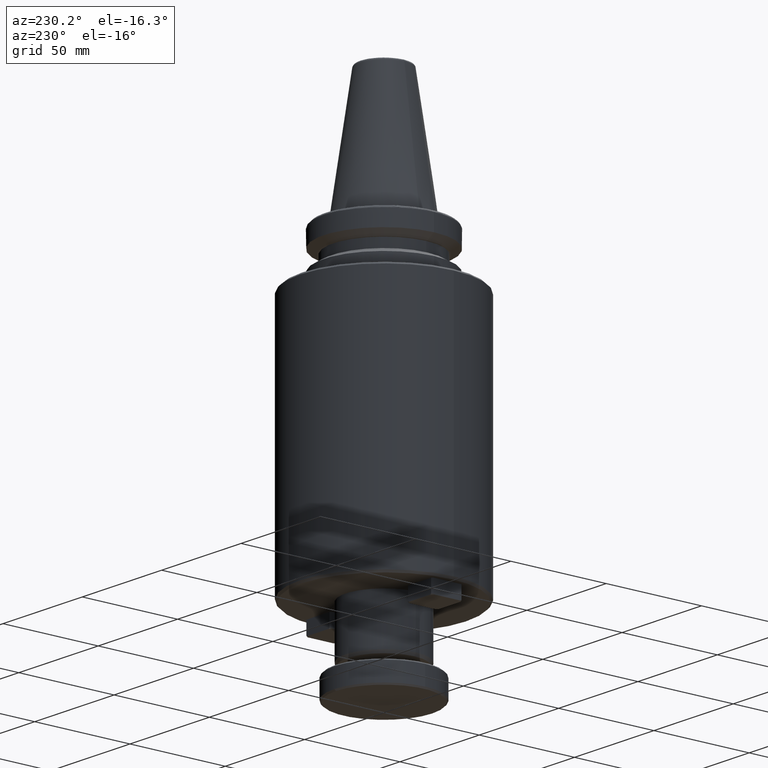
[diagram: clean part render]
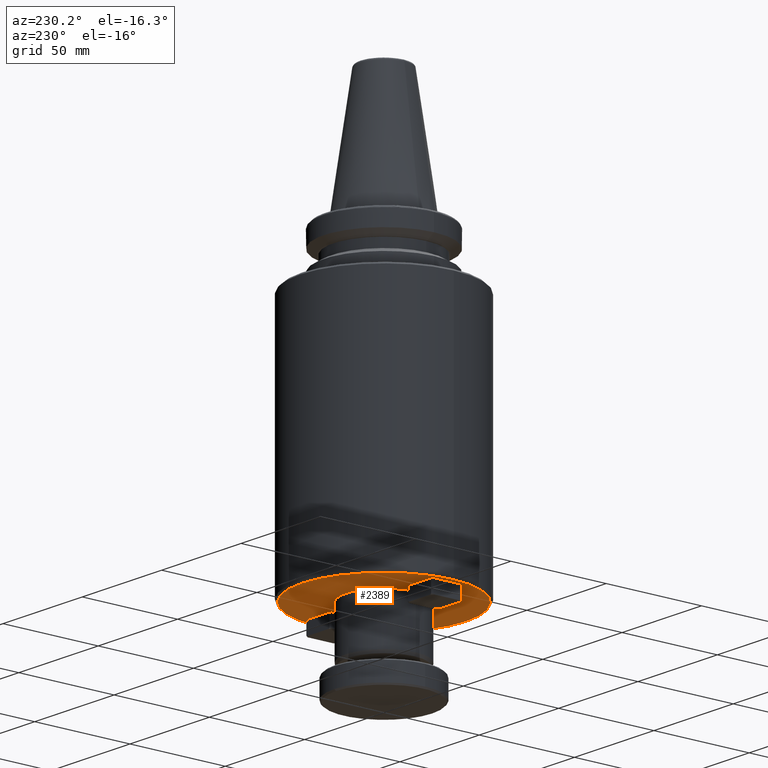
[diagram: same view with one face highlighted and labeled with its STEP entity id]
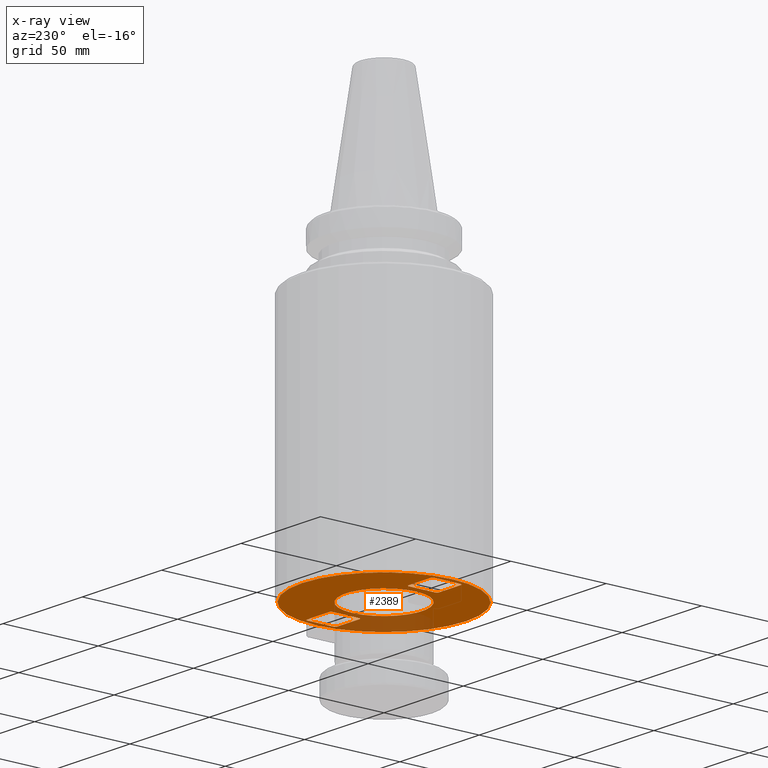
[diagram: x-ray of the same camera — body ghosted, the highlighted face saturated]
A machine part, auxiliary view. The second image highlights one B-rep face of the part: STEP entity #2389.
The next image is the same camera in x-ray: the body ghosted, the highlighted face saturated — about 20% of this face is hidden behind the body in this view.
In plain terms, the highlighted planar face has unit normal (0, 0, 1).
Its self-contained STEP definition (entity closure, byte-faithful):
#19 = ORIENTED_EDGE ( 'NONE', *, *, #287, .F. ) ;
#20 = CARTESIAN_POINT ( 'NONE',  ( 0.0000000000000000000, 8.000000000000000000, -160.0000000000000000 ) ) ;
#23 = VECTOR ( 'NONE', #3298, 1000.000000000000100 ) ;
#26 = CARTESIAN_POINT ( 'NONE',  ( 43.00000000000000000, 0.0000000000000000000, -160.0000000000000300 ) ) ;
#27 = EDGE_CURVE ( 'NONE', #2241, #600, #1875, .T. ) ;
#30 = ORIENTED_EDGE ( 'NONE', *, *, #1890, .F. ) ;
#99 = CIRCLE ( 'NONE', #1978, 20.00000000000000000 ) ;
#159 = ORIENTED_EDGE ( 'NONE', *, *, #2882, .T. ) ;
#190 = EDGE_LOOP ( 'NONE', ( #522, #1231 ) ) ;
#196 = CARTESIAN_POINT ( 'NONE',  ( 39.30000000000003300, -7.999999999999996400, -160.0000000000000000 ) ) ;
#218 = VECTOR ( 'NONE', #2558, 1000.000000000000100 ) ;
#222 = CIRCLE ( 'NONE', #3471, 43.00000000000000000 ) ;
#283 = ORIENTED_EDGE ( 'NONE', *, *, #27, .F. ) ;
#287 = EDGE_CURVE ( 'NONE', #485, #3392, #2896, .T. ) ;
#290 = VERTEX_POINT ( 'NONE', #1956 ) ;
#310 = CARTESIAN_POINT ( 'NONE',  ( 40.00000000000000000, 7.299999999999970500, -160.0000000000000000 ) ) ;
#319 = VERTEX_POINT ( 'NONE', #649 ) ;
#333 = LINE ( 'NONE', #1931, #23 ) ;
#374 = CARTESIAN_POINT ( 'NONE',  ( 24.00000000000000000, -7.299999999999959000, -160.0000000000000000 ) ) ;
#432 = EDGE_LOOP ( 'NONE', ( #3026, #19 ) ) ;
#458 = EDGE_CURVE ( 'NONE', #2241, #2433, #3578, .T. ) ;
#476 = VERTEX_POINT ( 'NONE', #771 ) ;
#480 = LINE ( 'NONE', #3234, #1022 ) ;
#485 = VERTEX_POINT ( 'NONE', #1391 ) ;
#486 = DIRECTION ( 'NONE',  ( 0.0000000000000000000, -1.000000000000000000, -0.0000000000000000000 ) ) ;
#491 = CARTESIAN_POINT ( 'NONE',  ( -24.00000000000000000, 7.299999999999966100, -160.0000000000000000 ) ) ;
#493 = DIRECTION ( 'NONE',  ( -0.7071067811865474600, 0.7071067811865474600, -0.0000000000000000000 ) ) ;
#500 = LINE ( 'NONE', #20, #849 ) ;
#505 = CARTESIAN_POINT ( 'NONE',  ( 24.70000000000006700, 7.999999999999986700, -160.0000000000000000 ) ) ;
#511 = CARTESIAN_POINT ( 'NONE',  ( -40.00000000000000000, -7.299999999999966100, -160.0000000000000000 ) ) ;
#520 = CARTESIAN_POINT ( 'NONE',  ( -24.70000000000003500, -8.000000000000000000, -160.0000000000000000 ) ) ;
#522 = ORIENTED_EDGE ( 'NONE', *, *, #2618, .F. ) ;
#523 = DIRECTION ( 'NONE',  ( -0.7071067811865340300, -0.7071067811865611200, -0.0000000000000000000 ) ) ;
#542 = EDGE_CURVE ( 'NONE', #3228, #2627, #2444, .T. ) ;
#578 = ORIENTED_EDGE ( 'NONE', *, *, #3024, .T. ) ;
#582 = CARTESIAN_POINT ( 'NONE',  ( 20.00000000000000000, 0.0000000000000000000, -160.0000000000000300 ) ) ;
#600 = VERTEX_POINT ( 'NONE', #3256 ) ;
#638 = VERTEX_POINT ( 'NONE', #1699 ) ;
#649 = CARTESIAN_POINT ( 'NONE',  ( -24.00000000000000000, -7.299999999999966100, -160.0000000000000000 ) ) ;
#699 = DIRECTION ( 'NONE',  ( -0.0000000000000000000, -0.0000000000000000000, -1.000000000000000000 ) ) ;
#703 = DIRECTION ( 'NONE',  ( 0.0000000000000000000, -0.0000000000000000000, 1.000000000000000000 ) ) ;
#732 = VERTEX_POINT ( 'NONE', #2049 ) ;
#771 = CARTESIAN_POINT ( 'NONE',  ( -39.29999999999996900, -8.000000000000000000, -160.0000000000000000 ) ) ;
#835 = VECTOR ( 'NONE', #3462, 1000.000000000000000 ) ;
#849 = VECTOR ( 'NONE', #3168, 1000.000000000000000 ) ;
#855 = LINE ( 'NONE', #2087, #1462 ) ;
#876 = ORIENTED_EDGE ( 'NONE', *, *, #995, .T. ) ;
#918 = VECTOR ( 'NONE', #1134, 1000.000000000000100 ) ;
#926 = EDGE_LOOP ( 'NONE', ( #1321, #2692, #1098, #2424, #1641, #1478, #876, #283 ) ) ;
#933 = VERTEX_POINT ( 'NONE', #1388 ) ;
#995 = EDGE_CURVE ( 'NONE', #3228, #600, #333, .T. ) ;
#1022 = VECTOR ( 'NONE', #3001, 1000.000000000000000 ) ;
#1025 = VERTEX_POINT ( 'NONE', #2499 ) ;
#1044 = EDGE_CURVE ( 'NONE', #638, #319, #1450, .T. ) ;
#1045 = DIRECTION ( 'NONE',  ( -0.7071067811865474600, -0.7071067811865474600, -0.0000000000000000000 ) ) ;
#1047 = VECTOR ( 'NONE', #1045, 1000.000000000000100 ) ;
#1079 = CARTESIAN_POINT ( 'NONE',  ( 0.0000000000000000000, -7.999999999999996400, -160.0000000000000000 ) ) ;
#1084 = CARTESIAN_POINT ( 'NONE',  ( -39.29999999999996900, 8.000000000000000000, -160.0000000000000000 ) ) ;
#1094 = CARTESIAN_POINT ( 'NONE',  ( 24.00000000000000000, -7.299999999999959000, -160.0000000000000000 ) ) ;
#1098 = ORIENTED_EDGE ( 'NONE', *, *, #3002, .T. ) ;
#1105 = LINE ( 'NONE', #1863, #1237 ) ;
#1134 = DIRECTION ( 'NONE',  ( 0.7071067811865474600, -0.7071067811865474600, -0.0000000000000000000 ) ) ;
#1138 = EDGE_CURVE ( 'NONE', #1202, #3459, #480, .T. ) ;
#1169 = CARTESIAN_POINT ( 'NONE',  ( -20.00000000000000000, 2.449293598294706500E-015, -160.0000000000000300 ) ) ;
#1182 = EDGE_CURVE ( 'NONE', #732, #319, #1105, .T. ) ;
#1202 = VERTEX_POINT ( 'NONE', #511 ) ;
#1215 = LINE ( 'NONE', #3075, #3053 ) ;
#1219 = CIRCLE ( 'NONE', #2220, 20.00000000000000000 ) ;
#1231 = ORIENTED_EDGE ( 'NONE', *, *, #1569, .F. ) ;
#1237 = VECTOR ( 'NONE', #486, 1000.000000000000000 ) ;
#1321 = ORIENTED_EDGE ( 'NONE', *, *, #458, .T. ) ;
#1335 = DIRECTION ( 'NONE',  ( 1.000000000000000000, 0.0000000000000000000, 0.0000000000000000000 ) ) ;
#1357 = DIRECTION ( 'NONE',  ( -0.7071067811865470200, 0.7071067811865480200, -0.0000000000000000000 ) ) ;
#1388 = CARTESIAN_POINT ( 'NONE',  ( -39.29999999999996900, 8.000000000000000000, -160.0000000000000000 ) ) ;
#1391 = CARTESIAN_POINT ( 'NONE',  ( -43.00000000000000000, 5.327213576290986800E-015, -160.0000000000000300 ) ) ;
#1402 = ORIENTED_EDGE ( 'NONE', *, *, #1138, .F. ) ;
#1450 = LINE ( 'NONE', #520, #218 ) ;
#1455 = DIRECTION ( 'NONE',  ( 1.000000000000000000, 0.0000000000000000000, 0.0000000000000000000 ) ) ;
#1456 = DIRECTION ( 'NONE',  ( -0.0000000000000000000, -0.0000000000000000000, -1.000000000000000000 ) ) ;
#1458 = CARTESIAN_POINT ( 'NONE',  ( 0.0000000000000000000, 0.0000000000000000000, -160.0000000000000300 ) ) ;
#1462 = VECTOR ( 'NONE', #2070, 1000.000000000000100 ) ;
#1466 = CARTESIAN_POINT ( 'NONE',  ( 24.70000000000003800, -7.999999999999994700, -160.0000000000000000 ) ) ;
#1478 = ORIENTED_EDGE ( 'NONE', *, *, #542, .F. ) ;
#1569 = EDGE_CURVE ( 'NONE', #3489, #2957, #1219, .T. ) ;
#1641 = ORIENTED_EDGE ( 'NONE', *, *, #2853, .T. ) ;
#1699 = CARTESIAN_POINT ( 'NONE',  ( -24.70000000000003500, -8.000000000000000000, -160.0000000000000000 ) ) ;
#1704 = DIRECTION ( 'NONE',  ( -0.0000000000000000000, 1.000000000000000000, 0.0000000000000000000 ) ) ;
#1710 = CARTESIAN_POINT ( 'NONE',  ( 39.29999999999997600, 8.000000000000000000, -160.0000000000000000 ) ) ;
#1720 = EDGE_CURVE ( 'NONE', #933, #1025, #500, .T. ) ;
#1782 = VECTOR ( 'NONE', #2082, 1000.000000000000000 ) ;
#1863 = CARTESIAN_POINT ( 'NONE',  ( -24.00000000000000000, 20.00000000000000000, -160.0000000000000000 ) ) ;
#1874 = LINE ( 'NONE', #491, #3396 ) ;
#1875 = LINE ( 'NONE', #2268, #1782 ) ;
#1890 = EDGE_CURVE ( 'NONE', #638, #476, #1215, .T. ) ;
#1900 = VERTEX_POINT ( 'NONE', #3072 ) ;
#1920 = CARTESIAN_POINT ( 'NONE',  ( 24.00000000000000000, 20.00000000000000000, -160.0000000000000000 ) ) ;
#1922 = DIRECTION ( 'NONE',  ( 1.000000000000000000, 0.0000000000000000000, -0.0000000000000000000 ) ) ;
#1924 = DIRECTION ( 'NONE',  ( 0.0000000000000000000, 0.0000000000000000000, 1.000000000000000000 ) ) ;
#1928 = CARTESIAN_POINT ( 'NONE',  ( 0.0000000000000000000, 20.00000000000000000, -160.0000000000000000 ) ) ;
#1931 = CARTESIAN_POINT ( 'NONE',  ( 39.30000000000003300, -7.999999999999994700, -160.0000000000000000 ) ) ;
#1937 = PLANE ( 'NONE',  #2816 ) ;
#1952 = LINE ( 'NONE', #505, #3416 ) ;
#1956 = CARTESIAN_POINT ( 'NONE',  ( 24.70000000000006700, 7.999999999999986700, -160.0000000000000000 ) ) ;
#1960 = LINE ( 'NONE', #1976, #2167 ) ;
#1973 = ORIENTED_EDGE ( 'NONE', *, *, #2288, .T. ) ;
#1976 = CARTESIAN_POINT ( 'NONE',  ( 0.0000000000000000000, 7.999999999999986700, -160.0000000000000000 ) ) ;
#1978 = AXIS2_PLACEMENT_3D ( 'NONE', #1458, #1456, #1455 ) ;
#1981 = DIRECTION ( 'NONE',  ( 1.000000000000000000, 0.0000000000000000000, -0.0000000000000000000 ) ) ;
#2049 = CARTESIAN_POINT ( 'NONE',  ( -24.00000000000000000, 7.299999999999966100, -160.0000000000000000 ) ) ;
#2062 = ORIENTED_EDGE ( 'NONE', *, *, #1720, .F. ) ;
#2066 = EDGE_LOOP ( 'NONE', ( #578, #2062, #159, #1402, #1973, #30, #2998, #2189 ) ) ;
#2070 = DIRECTION ( 'NONE',  ( 0.7071067811865474600, -0.7071067811865474600, -0.0000000000000000000 ) ) ;
#2082 = DIRECTION ( 'NONE',  ( 0.0000000000000000000, -1.000000000000000000, -0.0000000000000000000 ) ) ;
#2087 = CARTESIAN_POINT ( 'NONE',  ( -40.00000000000000000, -7.299999999999966100, -160.0000000000000000 ) ) ;
#2101 = EDGE_CURVE ( 'NONE', #3392, #485, #222, .T. ) ;
#2118 = CARTESIAN_POINT ( 'NONE',  ( 40.00000000000000000, 7.299999999999969600, -160.0000000000000000 ) ) ;
#2167 = VECTOR ( 'NONE', #1981, 1000.000000000000000 ) ;
#2189 = ORIENTED_EDGE ( 'NONE', *, *, #1182, .F. ) ;
#2220 = AXIS2_PLACEMENT_3D ( 'NONE', #2644, #699, #2366 ) ;
#2241 = VERTEX_POINT ( 'NONE', #2118 ) ;
#2268 = CARTESIAN_POINT ( 'NONE',  ( 40.00000000000000000, 20.00000000000000000, -160.0000000000000000 ) ) ;
#2271 = FACE_BOUND ( 'NONE', #2066, .T. ) ;
#2282 = LINE ( 'NONE', #1094, #918 ) ;
#2288 = EDGE_CURVE ( 'NONE', #1202, #476, #855, .T. ) ;
#2365 = FACE_OUTER_BOUND ( 'NONE', #432, .T. ) ;
#2366 = DIRECTION ( 'NONE',  ( 1.000000000000000000, 0.0000000000000000000, 0.0000000000000000000 ) ) ;
#2367 = EDGE_CURVE ( 'NONE', #290, #2433, #1960, .T. ) ;
#2389 = ADVANCED_FACE ( 'NONE', ( #2416, #2408, #2365, #2271 ), #1937, .F. ) ;
#2408 = FACE_BOUND ( 'NONE', #190, .T. ) ;
#2416 = FACE_BOUND ( 'NONE', #926, .T. ) ;
#2424 = ORIENTED_EDGE ( 'NONE', *, *, #2476, .F. ) ;
#2433 = VERTEX_POINT ( 'NONE', #1710 ) ;
#2444 = LINE ( 'NONE', #1079, #835 ) ;
#2476 = EDGE_CURVE ( 'NONE', #3137, #1900, #2848, .T. ) ;
#2499 = CARTESIAN_POINT ( 'NONE',  ( -24.70000000000003500, 8.000000000000000000, -160.0000000000000000 ) ) ;
#2558 = DIRECTION ( 'NONE',  ( 0.7071067811865474600, 0.7071067811865474600, -0.0000000000000000000 ) ) ;
#2618 = EDGE_CURVE ( 'NONE', #2957, #3489, #99, .T. ) ;
#2627 = VERTEX_POINT ( 'NONE', #1466 ) ;
#2635 = CARTESIAN_POINT ( 'NONE',  ( -40.00000000000000000, 7.299999999999966100, -160.0000000000000000 ) ) ;
#2644 = CARTESIAN_POINT ( 'NONE',  ( 0.0000000000000000000, 0.0000000000000000000, -160.0000000000000300 ) ) ;
#2692 = ORIENTED_EDGE ( 'NONE', *, *, #2367, .F. ) ;
#2772 = DIRECTION ( 'NONE',  ( 1.000000000000000000, 0.0000000000000000000, 0.0000000000000000000 ) ) ;
#2773 = DIRECTION ( 'NONE',  ( 0.0000000000000000000, -0.0000000000000000000, 1.000000000000000000 ) ) ;
#2775 = CARTESIAN_POINT ( 'NONE',  ( 0.0000000000000000000, 0.0000000000000000000, -160.0000000000000300 ) ) ;
#2816 = AXIS2_PLACEMENT_3D ( 'NONE', #1928, #1924, #1922 ) ;
#2848 = LINE ( 'NONE', #1920, #3079 ) ;
#2853 = EDGE_CURVE ( 'NONE', #3137, #2627, #2282, .T. ) ;
#2882 = EDGE_CURVE ( 'NONE', #933, #3459, #2949, .T. ) ;
#2896 = CIRCLE ( 'NONE', #3176, 43.00000000000000000 ) ;
#2949 = LINE ( 'NONE', #1084, #1047 ) ;
#2957 = VERTEX_POINT ( 'NONE', #582 ) ;
#2998 = ORIENTED_EDGE ( 'NONE', *, *, #1044, .T. ) ;
#3001 = DIRECTION ( 'NONE',  ( -0.0000000000000000000, 1.000000000000000000, 0.0000000000000000000 ) ) ;
#3002 = EDGE_CURVE ( 'NONE', #290, #1900, #1952, .T. ) ;
#3024 = EDGE_CURVE ( 'NONE', #732, #1025, #1874, .T. ) ;
#3026 = ORIENTED_EDGE ( 'NONE', *, *, #2101, .F. ) ;
#3053 = VECTOR ( 'NONE', #3097, 1000.000000000000000 ) ;
#3072 = CARTESIAN_POINT ( 'NONE',  ( 24.00000000000000000, 7.299999999999896800, -160.0000000000000000 ) ) ;
#3075 = CARTESIAN_POINT ( 'NONE',  ( 0.0000000000000000000, -8.000000000000000000, -160.0000000000000000 ) ) ;
#3079 = VECTOR ( 'NONE', #1704, 1000.000000000000000 ) ;
#3097 = DIRECTION ( 'NONE',  ( -1.000000000000000000, -0.0000000000000000000, 0.0000000000000000000 ) ) ;
#3137 = VERTEX_POINT ( 'NONE', #374 ) ;
#3168 = DIRECTION ( 'NONE',  ( 1.000000000000000000, 0.0000000000000000000, -0.0000000000000000000 ) ) ;
#3176 = AXIS2_PLACEMENT_3D ( 'NONE', #3260, #703, #1335 ) ;
#3228 = VERTEX_POINT ( 'NONE', #196 ) ;
#3234 = CARTESIAN_POINT ( 'NONE',  ( -40.00000000000000000, 20.00000000000000000, -160.0000000000000000 ) ) ;
#3256 = CARTESIAN_POINT ( 'NONE',  ( 40.00000000000000000, -7.300000000000020300, -160.0000000000000000 ) ) ;
#3260 = CARTESIAN_POINT ( 'NONE',  ( 0.0000000000000000000, 0.0000000000000000000, -160.0000000000000300 ) ) ;
#3298 = DIRECTION ( 'NONE',  ( 0.7071067811865474600, 0.7071067811865474600, -0.0000000000000000000 ) ) ;
#3392 = VERTEX_POINT ( 'NONE', #26 ) ;
#3396 = VECTOR ( 'NONE', #493, 1000.000000000000100 ) ;
#3416 = VECTOR ( 'NONE', #523, 1000.000000000000000 ) ;
#3459 = VERTEX_POINT ( 'NONE', #2635 ) ;
#3462 = DIRECTION ( 'NONE',  ( -1.000000000000000000, -0.0000000000000000000, 0.0000000000000000000 ) ) ;
#3471 = AXIS2_PLACEMENT_3D ( 'NONE', #2775, #2773, #2772 ) ;
#3489 = VERTEX_POINT ( 'NONE', #1169 ) ;
#3503 = VECTOR ( 'NONE', #1357, 1000.000000000000000 ) ;
#3578 = LINE ( 'NONE', #310, #3503 ) ;